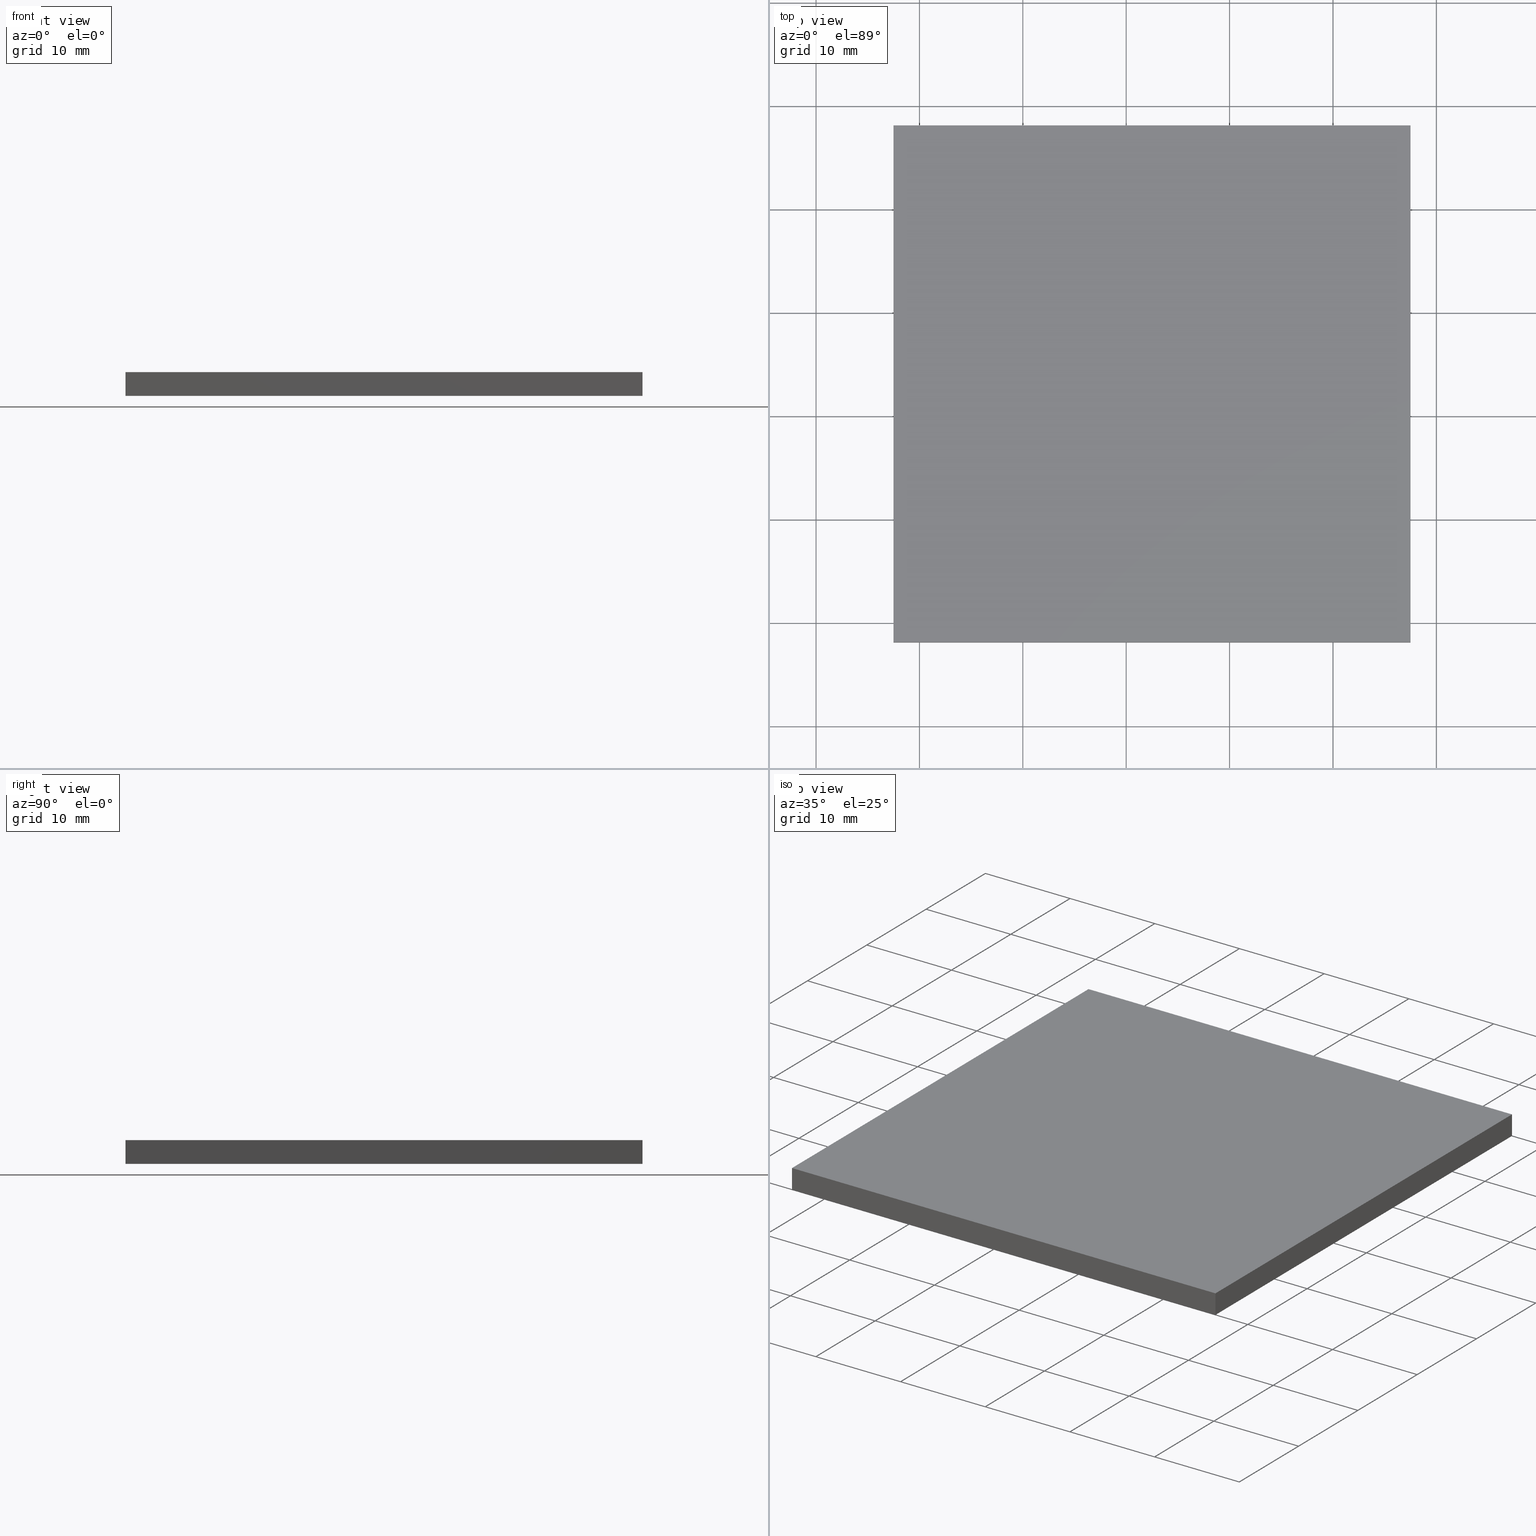
[diagram: canonical four-view strip — front | top / right | iso, engineering-drawing reading convention]
A machine part, canonical four-view strip (front | top / right | iso — engineering-drawing reading convention). The complete STEP part file that produces these views, byte-faithful:
ISO-10303-21;
HEADER;
FILE_DESCRIPTION (( 'STEP AP214' ),
    '1' );
FILE_NAME ('302524.STEP',
    '2019-08-13T07:01:01',
    ( '' ),
    ( '' ),
    'SwSTEP 2.0',
    'SolidWorks 2016',
    '' );
FILE_SCHEMA (( 'AUTOMOTIVE_DESIGN' ));
ENDSEC;

DATA;
#1 = CLOSED_SHELL ( 'NONE', ( #121, #139, #29, #187, #16, #87 ) ) ;
#2 =( NAMED_UNIT ( * ) SI_UNIT ( $, .STERADIAN. ) SOLID_ANGLE_UNIT ( ) );
#3 = EDGE_CURVE ( 'NONE', #104, #160, #99, .T. ) ;
#4 = ORIENTED_EDGE ( 'NONE', *, *, #15, .T. ) ;
#5 = STYLED_ITEM ( 'NONE', ( #101 ), #137 ) ;
#6 = UNCERTAINTY_MEASURE_WITH_UNIT (LENGTH_MEASURE( 1.000000000000000100E-005 ), #17, 'distance_accuracy_value', 'NONE');
#7 =( LENGTH_UNIT ( ) NAMED_UNIT ( * ) SI_UNIT ( .MILLI., .METRE. ) );
#8 = EDGE_LOOP ( 'NONE', ( #4, #200, #32, #115 ) ) ;
#9 = FILL_AREA_STYLE ('',( #64 ) ) ;
#10 = SURFACE_STYLE_USAGE ( .BOTH. , #164 ) ;
#11 = ORIENTED_EDGE ( 'NONE', *, *, #163, .F. ) ;
#12 = CARTESIAN_POINT ( 'NONE',  ( 177.4958715517701600, 98.12648366905320100, 0.0000000000000000000 ) ) ;
#13 = VECTOR ( 'NONE', #76, 1000.000000000000000 ) ;
#14 = ORIENTED_EDGE ( 'NONE', *, *, #188, .F. ) ;
#15 = EDGE_CURVE ( 'NONE', #122, #185, #194, .T. ) ;
#16 = ADVANCED_FACE ( 'NONE', ( #158 ), #61, .T. ) ;
#17 =( LENGTH_UNIT ( ) NAMED_UNIT ( * ) SI_UNIT ( .MILLI., .METRE. ) );
#18 = VECTOR ( 'NONE', #51, 1000.000000000000000 ) ;
#19 = CARTESIAN_POINT ( 'NONE',  ( 177.4958715517701900, 148.1264836690531900, 2.299999999999999800 ) ) ;
#20 = CARTESIAN_POINT ( 'NONE',  ( 0.0000000000000000000, 0.0000000000000000000, 2.299999999999999800 ) ) ;
#21 = CARTESIAN_POINT ( 'NONE',  ( 227.4958715517701600, 98.12648366905320100, 2.299999999999999800 ) ) ;
#22 = VECTOR ( 'NONE', #117, 1000.000000000000000 ) ;
#23 = AXIS2_PLACEMENT_3D ( 'NONE', #20, #96, #192 ) ;
#24 = PLANE ( 'NONE',  #199 ) ;
#25 = DIRECTION ( 'NONE',  ( -0.0000000000000000000, -0.0000000000000000000, -1.000000000000000000 ) ) ;
#26 = PLANE ( 'NONE',  #155 ) ;
#27 = AXIS2_PLACEMENT_3D ( 'NONE', #111, #195, #50 ) ;
#28 = PRESENTATION_LAYER_ASSIGNMENT (  '', '', ( #5 ) ) ;
#29 = ADVANCED_FACE ( 'NONE', ( #57 ), #161, .F. ) ;
#30 = LINE ( 'NONE', #113, #118 ) ;
#31 = APPLICATION_CONTEXT ( 'automotive_design' ) ;
#32 = ORIENTED_EDGE ( 'NONE', *, *, #62, .F. ) ;
#33 = CARTESIAN_POINT ( 'NONE',  ( 0.0000000000000000000, 0.0000000000000000000, 0.0000000000000000000 ) ) ;
#34 = CARTESIAN_POINT ( 'NONE',  ( 177.4958715517701900, 148.1264836690531900, 2.299999999999999800 ) ) ;
#35 =( NAMED_UNIT ( * ) PLANE_ANGLE_UNIT ( ) SI_UNIT ( $, .RADIAN. ) );
#36 = LINE ( 'NONE', #93, #126 ) ;
#37 = ORIENTED_EDGE ( 'NONE', *, *, #3, .T. ) ;
#38 = DIRECTION ( 'NONE',  ( -0.0000000000000000000, -0.0000000000000000000, -1.000000000000000000 ) ) ;
#39 = COLOUR_RGB ( '',1.000000000000000000, 1.000000000000000000, 1.000000000000000000 ) ;
#40 = CARTESIAN_POINT ( 'NONE',  ( 177.4958715517701600, 98.12648366905320100, 2.299999999999999800 ) ) ;
#41 = ORIENTED_EDGE ( 'NONE', *, *, #3, .F. ) ;
#42 = CARTESIAN_POINT ( 'NONE',  ( 177.4958715517701900, 148.1264836690531900, 2.299999999999999800 ) ) ;
#43 = VERTEX_POINT ( 'NONE', #165 ) ;
#44 =( LENGTH_UNIT ( ) NAMED_UNIT ( * ) SI_UNIT ( .MILLI., .METRE. ) );
#45 = UNCERTAINTY_MEASURE_WITH_UNIT (LENGTH_MEASURE( 1.000000000000000100E-005 ), #7, 'distance_accuracy_value', 'NONE');
#46 = DIRECTION ( 'NONE',  ( -5.551115123125785700E-016, -1.000000000000000000, 0.0000000000000000000 ) ) ;
#47 = ORIENTED_EDGE ( 'NONE', *, *, #15, .F. ) ;
#48 = DIRECTION ( 'NONE',  ( 1.000000000000000000, 0.0000000000000000000, 0.0000000000000000000 ) ) ;
#49 = ORIENTED_EDGE ( 'NONE', *, *, #188, .T. ) ;
#50 = DIRECTION ( 'NONE',  ( 5.551115123125785700E-016, -1.000000000000000000, 0.0000000000000000000 ) ) ;
#51 = DIRECTION ( 'NONE',  ( -1.000000000000000000, -0.0000000000000000000, -0.0000000000000000000 ) ) ;
#52 = DIRECTION ( 'NONE',  ( -0.0000000000000000000, -0.0000000000000000000, -1.000000000000000000 ) ) ;
#53 = AXIS2_PLACEMENT_3D ( 'NONE', #42, #66, #80 ) ;
#54 = ORIENTED_EDGE ( 'NONE', *, *, #128, .T. ) ;
#55 = VECTOR ( 'NONE', #167, 1000.000000000000000 ) ;
#56 = AXIS2_PLACEMENT_3D ( 'NONE', #33, #74, #89 ) ;
#57 = FACE_OUTER_BOUND ( 'NONE', #149, .T. ) ;
#58 = PRODUCT_CONTEXT ( 'NONE', #31, 'mechanical' ) ;
#59 = MANIFOLD_SOLID_BREP ( '͹̨-����1', #1 ) ;
#60 = LINE ( 'NONE', #79, #55 ) ;
#61 = PLANE ( 'NONE',  #23 ) ;
#62 = EDGE_CURVE ( 'NONE', #162, #104, #193, .T. ) ;
#63 = ORIENTED_EDGE ( 'NONE', *, *, #163, .T. ) ;
#64 = FILL_AREA_STYLE_COLOUR ( '', #156 ) ;
#65 = AXIS2_PLACEMENT_3D ( 'NONE', #151, #82, #75 ) ;
#66 = DIRECTION ( 'NONE',  ( 1.000000000000000000, -5.551115123125785700E-016, 0.0000000000000000000 ) ) ;
#67 = CARTESIAN_POINT ( 'NONE',  ( 177.4958715517701600, 98.12648366905320100, 2.299999999999999800 ) ) ;
#68 = PLANE ( 'NONE',  #53 ) ;
#69 = ORIENTED_EDGE ( 'NONE', *, *, #174, .T. ) ;
#70 = LINE ( 'NONE', #114, #22 ) ;
#71 = EDGE_CURVE ( 'NONE', #162, #122, #36, .T. ) ;
#72 = ORIENTED_EDGE ( 'NONE', *, *, #62, .T. ) ;
#73 = CARTESIAN_POINT ( 'NONE',  ( 177.4958715517701900, 148.1264836690531900, 0.0000000000000000000 ) ) ;
#74 = DIRECTION ( 'NONE',  ( 0.0000000000000000000, 0.0000000000000000000, 1.000000000000000000 ) ) ;
#75 = DIRECTION ( 'NONE',  ( 0.0000000000000000000, -0.0000000000000000000, -1.000000000000000000 ) ) ;
#76 = DIRECTION ( 'NONE',  ( -1.000000000000000000, -0.0000000000000000000, -0.0000000000000000000 ) ) ;
#77 = VECTOR ( 'NONE', #146, 1000.000000000000000 ) ;
#78 = CARTESIAN_POINT ( 'NONE',  ( 177.4958715517701900, 148.1264836690531900, 0.0000000000000000000 ) ) ;
#79 = CARTESIAN_POINT ( 'NONE',  ( 177.4958715517701600, 98.12648366905320100, 2.299999999999999800 ) ) ;
#80 = DIRECTION ( 'NONE',  ( 5.551115123125785700E-016, 1.000000000000000000, 0.0000000000000000000 ) ) ;
#81 =( GEOMETRIC_REPRESENTATION_CONTEXT ( 3 ) GLOBAL_UNCERTAINTY_ASSIGNED_CONTEXT ( ( #124 ) ) GLOBAL_UNIT_ASSIGNED_CONTEXT ( ( #44, #141, #177 ) ) REPRESENTATION_CONTEXT ( 'NONE', 'WORKASPACE' ) );
#82 = DIRECTION ( 'NONE',  ( 0.0000000000000000000, -1.000000000000000000, 0.0000000000000000000 ) ) ;
#83 = MECHANICAL_DESIGN_GEOMETRIC_PRESENTATION_REPRESENTATION (  '', ( #91 ), #168 ) ;
#84 = EDGE_LOOP ( 'NONE', ( #49, #119, #41, #131 ) ) ;
#85 = FACE_OUTER_BOUND ( 'NONE', #8, .T. ) ;
#86 = ORIENTED_EDGE ( 'NONE', *, *, #183, .T. ) ;
#87 = ADVANCED_FACE ( 'NONE', ( #135 ), #24, .F. ) ;
#88 = VECTOR ( 'NONE', #132, 1000.000000000000000 ) ;
#89 = DIRECTION ( 'NONE',  ( 1.000000000000000000, 0.0000000000000000000, 0.0000000000000000000 ) ) ;
#90 = PRODUCT_DEFINITION_FORMATION_WITH_SPECIFIED_SOURCE ( '�κ�', '', #166, .NOT_KNOWN. ) ;
#91 = STYLED_ITEM ( 'NONE', ( #110 ), #59 ) ;
#92 = VECTOR ( 'NONE', #52, 1000.000000000000000 ) ;
#93 = CARTESIAN_POINT ( 'NONE',  ( 227.4958715517701400, 148.1264836690531900, 2.299999999999999800 ) ) ;
#94 = LINE ( 'NONE', #130, #182 ) ;
#95 = ORIENTED_EDGE ( 'NONE', *, *, #128, .F. ) ;
#96 = DIRECTION ( 'NONE',  ( -0.0000000000000000000, 0.0000000000000000000, 1.000000000000000000 ) ) ;
#97 = CARTESIAN_POINT ( 'NONE',  ( 227.4958715517701400, 148.1264836690531900, 2.299999999999999800 ) ) ;
#98 = DIRECTION ( 'NONE',  ( 0.0000000000000000000, 1.000000000000000000, 0.0000000000000000000 ) ) ;
#99 = LINE ( 'NONE', #125, #77 ) ;
#100 = PRODUCT_DEFINITION ( 'δ֪', '', #90, #102 ) ;
#101 = PRESENTATION_STYLE_ASSIGNMENT (( #106 ) ) ;
#102 = PRODUCT_DEFINITION_CONTEXT ( 'detailed design', #108, 'design' ) ;
#103 = LINE ( 'NONE', #116, #92 ) ;
#104 = VERTEX_POINT ( 'NONE', #34 ) ;
#105 =( NAMED_UNIT ( * ) PLANE_ANGLE_UNIT ( ) SI_UNIT ( $, .RADIAN. ) );
#106 = SURFACE_STYLE_USAGE ( .BOTH. , #191 ) ;
#107 = MECHANICAL_DESIGN_GEOMETRIC_PRESENTATION_REPRESENTATION (  '', ( #5 ), #81 ) ;
#108 = APPLICATION_CONTEXT ( 'automotive_design' ) ;
#109 = SHAPE_DEFINITION_REPRESENTATION ( #123, #137 ) ;
#110 = PRESENTATION_STYLE_ASSIGNMENT (( #10 ) ) ;
#111 = CARTESIAN_POINT ( 'NONE',  ( 227.4958715517701400, 148.1264836690531900, 2.299999999999999800 ) ) ;
#112 = EDGE_LOOP ( 'NONE', ( #153, #95, #189, #136 ) ) ;
#113 = CARTESIAN_POINT ( 'NONE',  ( 177.4958715517701600, 98.12648366905320100, 2.299999999999999800 ) ) ;
#114 = CARTESIAN_POINT ( 'NONE',  ( 227.4958715517701400, 148.1264836690531900, 2.299999999999999800 ) ) ;
#115 = ORIENTED_EDGE ( 'NONE', *, *, #71, .T. ) ;
#116 = CARTESIAN_POINT ( 'NONE',  ( 177.4958715517701900, 148.1264836690531900, 2.299999999999999800 ) ) ;
#117 = DIRECTION ( 'NONE',  ( -5.551115123125785700E-016, 1.000000000000000000, -0.0000000000000000000 ) ) ;
#118 = VECTOR ( 'NONE', #133, 1000.000000000000000 ) ;
#119 = ORIENTED_EDGE ( 'NONE', *, *, #120, .F. ) ;
#120 = EDGE_CURVE ( 'NONE', #160, #43, #30, .T. ) ;
#121 = ADVANCED_FACE ( 'NONE', ( #148 ), #68, .F. ) ;
#122 = VERTEX_POINT ( 'NONE', #147 ) ;
#123 = PRODUCT_DEFINITION_SHAPE ( 'NONE', 'NONE',  #100 ) ;
#124 = UNCERTAINTY_MEASURE_WITH_UNIT (LENGTH_MEASURE( 1.000000000000000100E-005 ), #44, 'distance_accuracy_value', 'NONE');
#125 = CARTESIAN_POINT ( 'NONE',  ( 177.4958715517701900, 148.1264836690531900, 2.299999999999999800 ) ) ;
#126 = VECTOR ( 'NONE', #38, 1000.000000000000000 ) ;
#127 = VERTEX_POINT ( 'NONE', #21 ) ;
#128 = EDGE_CURVE ( 'NONE', #127, #171, #202, .T. ) ;
#129 = CARTESIAN_POINT ( 'NONE',  ( 0.0000000000000000000, 0.0000000000000000000, 0.0000000000000000000 ) ) ;
#130 = CARTESIAN_POINT ( 'NONE',  ( 227.4958715517701400, 148.1264836690531900, 0.0000000000000000000 ) ) ;
#131 = ORIENTED_EDGE ( 'NONE', *, *, #145, .T. ) ;
#132 = DIRECTION ( 'NONE',  ( 1.000000000000000000, 0.0000000000000000000, 0.0000000000000000000 ) ) ;
#133 = DIRECTION ( 'NONE',  ( -0.0000000000000000000, -0.0000000000000000000, -1.000000000000000000 ) ) ;
#134 = VECTOR ( 'NONE', #46, 1000.000000000000000 ) ;
#135 = FACE_OUTER_BOUND ( 'NONE', #175, .T. ) ;
#136 = ORIENTED_EDGE ( 'NONE', *, *, #120, .T. ) ;
#137 = ADVANCED_BREP_SHAPE_REPRESENTATION ( '302524', ( #59, #56 ), #186 ) ;
#138 = EDGE_LOOP ( 'NONE', ( #37, #69, #86, #72 ) ) ;
#139 = ADVANCED_FACE ( 'NONE', ( #184 ), #26, .F. ) ;
#140 = EDGE_CURVE ( 'NONE', #43, #171, #179, .T. ) ;
#141 =( NAMED_UNIT ( * ) PLANE_ANGLE_UNIT ( ) SI_UNIT ( $, .RADIAN. ) );
#142 = ORIENTED_EDGE ( 'NONE', *, *, #140, .F. ) ;
#143 = APPLICATION_PROTOCOL_DEFINITION ( 'draft international standard', 'automotive_design', 1998, #31 ) ;
#144 = DIRECTION ( 'NONE',  ( -0.0000000000000000000, 0.0000000000000000000, 1.000000000000000000 ) ) ;
#145 = EDGE_CURVE ( 'NONE', #104, #185, #103, .T. ) ;
#146 = DIRECTION ( 'NONE',  ( -5.551115123125785700E-016, -1.000000000000000000, 0.0000000000000000000 ) ) ;
#147 = CARTESIAN_POINT ( 'NONE',  ( 227.4958715517701400, 148.1264836690531900, 0.0000000000000000000 ) ) ;
#148 = FACE_OUTER_BOUND ( 'NONE', #84, .T. ) ;
#149 = EDGE_LOOP ( 'NONE', ( #63, #178, #201, #54 ) ) ;
#150 = PLANE ( 'NONE',  #65 ) ;
#151 = CARTESIAN_POINT ( 'NONE',  ( 177.4958715517701900, 148.1264836690531900, 2.299999999999999800 ) ) ;
#152 = SURFACE_STYLE_FILL_AREA ( #9 ) ;
#153 = ORIENTED_EDGE ( 'NONE', *, *, #140, .T. ) ;
#154 = PRESENTATION_LAYER_ASSIGNMENT (  '', '', ( #91 ) ) ;
#155 = AXIS2_PLACEMENT_3D ( 'NONE', #67, #98, #197 ) ;
#156 = COLOUR_RGB ( '',1.000000000000000000, 1.000000000000000000, 1.000000000000000000 ) ;
#157 = VECTOR ( 'NONE', #25, 1000.000000000000000 ) ;
#158 = FACE_OUTER_BOUND ( 'NONE', #138, .T. ) ;
#159 = FILL_AREA_STYLE_COLOUR ( '', #39 ) ;
#160 = VERTEX_POINT ( 'NONE', #40 ) ;
#161 = PLANE ( 'NONE',  #27 ) ;
#162 = VERTEX_POINT ( 'NONE', #97 ) ;
#163 = EDGE_CURVE ( 'NONE', #171, #122, #94, .T. ) ;
#164 = SURFACE_SIDE_STYLE ('',( #152 ) ) ;
#165 = CARTESIAN_POINT ( 'NONE',  ( 177.4958715517701600, 98.12648366905320100, 0.0000000000000000000 ) ) ;
#166 = PRODUCT ( '302524', '302524', '', ( #58 ) ) ;
#167 = DIRECTION ( 'NONE',  ( 1.000000000000000000, 0.0000000000000000000, 0.0000000000000000000 ) ) ;
#168 =( GEOMETRIC_REPRESENTATION_CONTEXT ( 3 ) GLOBAL_UNCERTAINTY_ASSIGNED_CONTEXT ( ( #45 ) ) GLOBAL_UNIT_ASSIGNED_CONTEXT ( ( #7, #35, #196 ) ) REPRESENTATION_CONTEXT ( 'NONE', 'WORKASPACE' ) );
#169 = CARTESIAN_POINT ( 'NONE',  ( 227.4958715517701600, 98.12648366905320100, 2.299999999999999800 ) ) ;
#170 = CARTESIAN_POINT ( 'NONE',  ( 227.4958715517701600, 98.12648366905320100, 0.0000000000000000000 ) ) ;
#171 = VERTEX_POINT ( 'NONE', #170 ) ;
#172 = PRODUCT_RELATED_PRODUCT_CATEGORY ( 'part', '', ( #166 ) ) ;
#173 = LINE ( 'NONE', #73, #134 ) ;
#174 = EDGE_CURVE ( 'NONE', #160, #127, #60, .T. ) ;
#175 = EDGE_LOOP ( 'NONE', ( #14, #47, #11, #142 ) ) ;
#176 = APPLICATION_PROTOCOL_DEFINITION ( 'draft international standard', 'automotive_design', 1998, #108 ) ;
#177 =( NAMED_UNIT ( * ) SI_UNIT ( $, .STERADIAN. ) SOLID_ANGLE_UNIT ( ) );
#178 = ORIENTED_EDGE ( 'NONE', *, *, #71, .F. ) ;
#179 = LINE ( 'NONE', #12, #88 ) ;
#180 = DIRECTION ( 'NONE',  ( -5.551115123125785700E-016, 1.000000000000000000, -0.0000000000000000000 ) ) ;
#181 = CARTESIAN_POINT ( 'NONE',  ( 177.4958715517701900, 148.1264836690531900, 0.0000000000000000000 ) ) ;
#182 = VECTOR ( 'NONE', #180, 1000.000000000000000 ) ;
#183 = EDGE_CURVE ( 'NONE', #127, #162, #70, .T. ) ;
#184 = FACE_OUTER_BOUND ( 'NONE', #112, .T. ) ;
#185 = VERTEX_POINT ( 'NONE', #181 ) ;
#186 =( GEOMETRIC_REPRESENTATION_CONTEXT ( 3 ) GLOBAL_UNCERTAINTY_ASSIGNED_CONTEXT ( ( #6 ) ) GLOBAL_UNIT_ASSIGNED_CONTEXT ( ( #17, #105, #2 ) ) REPRESENTATION_CONTEXT ( 'NONE', 'WORKASPACE' ) );
#187 = ADVANCED_FACE ( 'NONE', ( #85 ), #150, .F. ) ;
#188 = EDGE_CURVE ( 'NONE', #185, #43, #173, .T. ) ;
#189 = ORIENTED_EDGE ( 'NONE', *, *, #174, .F. ) ;
#190 = FILL_AREA_STYLE ('',( #159 ) ) ;
#191 = SURFACE_SIDE_STYLE ('',( #198 ) ) ;
#192 = DIRECTION ( 'NONE',  ( 1.000000000000000000, 0.0000000000000000000, 0.0000000000000000000 ) ) ;
#193 = LINE ( 'NONE', #19, #13 ) ;
#194 = LINE ( 'NONE', #78, #18 ) ;
#195 = DIRECTION ( 'NONE',  ( -1.000000000000000000, -5.551115123125785700E-016, 0.0000000000000000000 ) ) ;
#196 =( NAMED_UNIT ( * ) SI_UNIT ( $, .STERADIAN. ) SOLID_ANGLE_UNIT ( ) );
#197 = DIRECTION ( 'NONE',  ( 0.0000000000000000000, -0.0000000000000000000, 1.000000000000000000 ) ) ;
#198 = SURFACE_STYLE_FILL_AREA ( #190 ) ;
#199 = AXIS2_PLACEMENT_3D ( 'NONE', #129, #144, #48 ) ;
#200 = ORIENTED_EDGE ( 'NONE', *, *, #145, .F. ) ;
#201 = ORIENTED_EDGE ( 'NONE', *, *, #183, .F. ) ;
#202 = LINE ( 'NONE', #169, #157 ) ;
ENDSEC;
END-ISO-10303-21;
